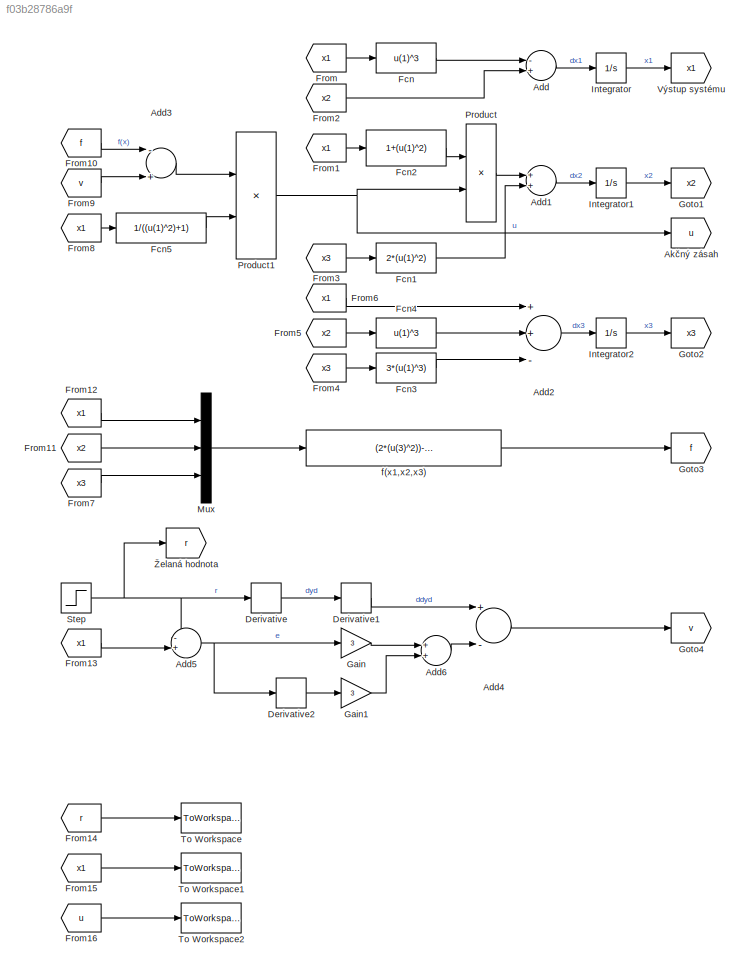
MODEL slx_f03b28786a9f
KIND model
CONFIG AbsTol = auto
CONFIG EnableMultiTasking = off
CONFIG FixedStep = auto
CONFIG MaxStep = auto
CONFIG MinStep = auto
CONFIG RelTol = 1e-3
CONFIG SampleTimeConstraint = Unconstrained
CONFIG Solver = VariableStepAuto
CONFIG SolverName = VariableStepAuto
CONFIG StartTime = 0.0
CONFIG StopTime = 10
BLOCK [Sum] Add
  InputSameDT = off
  Inputs = -+
  OutDataTypeStr = Inherit: Inherit via internal rule
  Ports = [2, 1]
  SaturateOnIntegerOverflow = off
BLOCK [Sum] Add1
  InputSameDT = off
  OutDataTypeStr = Inherit: Inherit via internal rule
  Ports = [2, 1]
  SaturateOnIntegerOverflow = off
BLOCK [Sum] Add2
  InputSameDT = off
  Inputs = ++-
  OutDataTypeStr = Inherit: Inherit via internal rule
  Ports = [3, 1]
  SaturateOnIntegerOverflow = off
BLOCK [Sum] Add3
  InputSameDT = off
  Inputs = -+
  OutDataTypeStr = Inherit: Inherit via internal rule
  Ports = [2, 1]
  SaturateOnIntegerOverflow = off
BLOCK [Sum] Add4
  InputSameDT = off
  Inputs = +-
  OutDataTypeStr = Inherit: Inherit via internal rule
  Ports = [2, 1]
  SaturateOnIntegerOverflow = off
BLOCK [Sum] Add5
  IconShape = round
  InputSameDT = off
  Inputs = -+|
  OutDataTypeStr = Inherit: Inherit via internal rule
  Ports = [2, 1]
  SaturateOnIntegerOverflow = off
BLOCK [Sum] Add6
  InputSameDT = off
  OutDataTypeStr = Inherit: Inherit via internal rule
  Ports = [2, 1]
  SaturateOnIntegerOverflow = off
BLOCK [Goto] Akčný zásah
  GotoTag = u
BLOCK [Derivative] Derivative
BLOCK [Derivative] Derivative1
BLOCK [Derivative] Derivative2
BLOCK [Fcn] Fcn
  Expr = u(1)^3
BLOCK [Fcn] Fcn1
  Expr = 2*(u(1)^2)
BLOCK [Fcn] Fcn2
  Expr = 1+(u(1)^2)
BLOCK [Fcn] Fcn3
  Expr = 3*(u(1)^3)
BLOCK [Fcn] Fcn4
  Expr = u(1)^3
BLOCK [Fcn] Fcn5
  Expr = 1/((u(1)^2)+1)
BLOCK [From] From
  GotoTag = x1
BLOCK [From] From1
  GotoTag = x1
BLOCK [From] From10
  GotoTag = f
BLOCK [From] From11
  GotoTag = x2
BLOCK [From] From12
  GotoTag = x1
BLOCK [From] From13
  GotoTag = x1
BLOCK [From] From14
  GotoTag = r
BLOCK [From] From15
  GotoTag = x1
BLOCK [From] From16
  GotoTag = u
BLOCK [From] From2
  GotoTag = x2
BLOCK [From] From3
  GotoTag = x3
BLOCK [From] From4
  GotoTag = x3
BLOCK [From] From5
  GotoTag = x2
BLOCK [From] From6
  GotoTag = x1
BLOCK [From] From7
  GotoTag = x3
BLOCK [From] From8
  GotoTag = x1
BLOCK [From] From9
  GotoTag = v
BLOCK [Gain] Gain
  Gain = 3
  OutDataTypeStr = Inherit: Inherit via internal rule
  ParamDataTypeStr = Inherit: Inherit via internal rule
  SaturateOnIntegerOverflow = off
BLOCK [Gain] Gain1
  Gain = 3
  OutDataTypeStr = Inherit: Inherit via internal rule
  ParamDataTypeStr = Inherit: Inherit via internal rule
  SaturateOnIntegerOverflow = off
BLOCK [Goto] Goto1
  GotoTag = x2
BLOCK [Goto] Goto2
  GotoTag = x3
BLOCK [Goto] Goto3
  GotoTag = f
BLOCK [Goto] Goto4
  GotoTag = v
BLOCK [Integrator] Integrator
  Ports = [1, 1]
BLOCK [Integrator] Integrator1
  Ports = [1, 1]
BLOCK [Integrator] Integrator2
  Ports = [1, 1]
BLOCK [Mux] Mux
  DisplayOption = bar
  Inputs = 3
  Ports = [3, 1]
BLOCK [Product] Product
  InputSameDT = off
  OutDataTypeStr = Inherit: Inherit via internal rule
  Ports = [2, 1]
  RndMeth = Floor
  SaturateOnIntegerOverflow = off
BLOCK [Product] Product1
  InputSameDT = off
  OutDataTypeStr = Inherit: Inherit via internal rule
  Ports = [2, 1]
  RndMeth = Floor
  SaturateOnIntegerOverflow = off
BLOCK [Step] Step
  After = ziad
  SampleTime = 0
  Time = 0
BLOCK [ToWorkspace] To Workspace
  FixptAsFi = on
  MaxDataPoints = inf
  Ports = [1]
  SampleTime = -1
  Save2DSignal = 3-D array (concatenate along third dimension)
  SaveFormat = Timeseries
  VariableName = ref
BLOCK [ToWorkspace] To Workspace1
  FixptAsFi = on
  MaxDataPoints = inf
  Ports = [1]
  SampleTime = -1
  Save2DSignal = 3-D array (concatenate along third dimension)
  SaveFormat = Timeseries
  VariableName = vys
BLOCK [ToWorkspace] To Workspace2
  FixptAsFi = on
  MaxDataPoints = inf
  Ports = [1]
  SampleTime = -1
  Save2DSignal = 3-D array (concatenate along third dimension)
  SaveFormat = Timeseries
  VariableName = akc
BLOCK [Goto] Výstup systému 
  GotoTag = x1
BLOCK [Fcn] f(x1,x2,x3)
  Expr = (2*(u(3)^2))-(3*(u(1)^2)*u(2))+(3*(u(1)^5))
BLOCK [Goto] Želaná hodnota 
  GotoTag = r
LINE Add1:1 -> Integrator1:1
LINE Add2:1 -> Integrator2:1
LINE Add3:1 -> Product1:1
LINE Add4:1 -> Goto4:1
NET Add5:1 -> Derivative2:1, Gain:1
LINE Add6:1 -> Add4:2
LINE Add:1 -> Integrator:1
LINE Derivative1:1 -> Add4:1
LINE Derivative2:1 -> Gain1:1
LINE Derivative:1 -> Derivative1:1
LINE Fcn1:1 -> Add1:2
LINE Fcn2:1 -> Product:1
LINE Fcn3:1 -> Add2:3
LINE Fcn4:1 -> Add2:2
LINE Fcn5:1 -> Product1:2
LINE Fcn:1 -> Add:1
LINE From10:1 -> Add3:1
LINE From11:1 -> Mux:2
LINE From12:1 -> Mux:1
LINE From13:1 -> Add5:2
LINE From14:1 -> To Workspace:1
LINE From15:1 -> To Workspace1:1
LINE From16:1 -> To Workspace2:1
LINE From1:1 -> Fcn2:1
LINE From2:1 -> Add:2
LINE From3:1 -> Fcn1:1
LINE From4:1 -> Fcn3:1
LINE From5:1 -> Fcn4:1
LINE From6:1 -> Add2:1
LINE From7:1 -> Mux:3
LINE From8:1 -> Fcn5:1
LINE From9:1 -> Add3:2
LINE From:1 -> Fcn:1
LINE Gain1:1 -> Add6:2
LINE Gain:1 -> Add6:1
LINE Integrator1:1 -> Goto1:1
LINE Integrator2:1 -> Goto2:1
LINE Integrator:1 -> Výstup systému :1
LINE Mux:1 -> f(x1,x2,x3):1
NET Product1:1 -> Akčný zásah:1, Product:2
LINE Product:1 -> Add1:1
NET Step:1 -> Add5:1, Derivative:1, Želaná hodnota :1
LINE f(x1,x2,x3):1 -> Goto3:1
note: NET lines group one-source signal fan-out (src -> all destinations, sorted); 1:1 wires keep LINE
